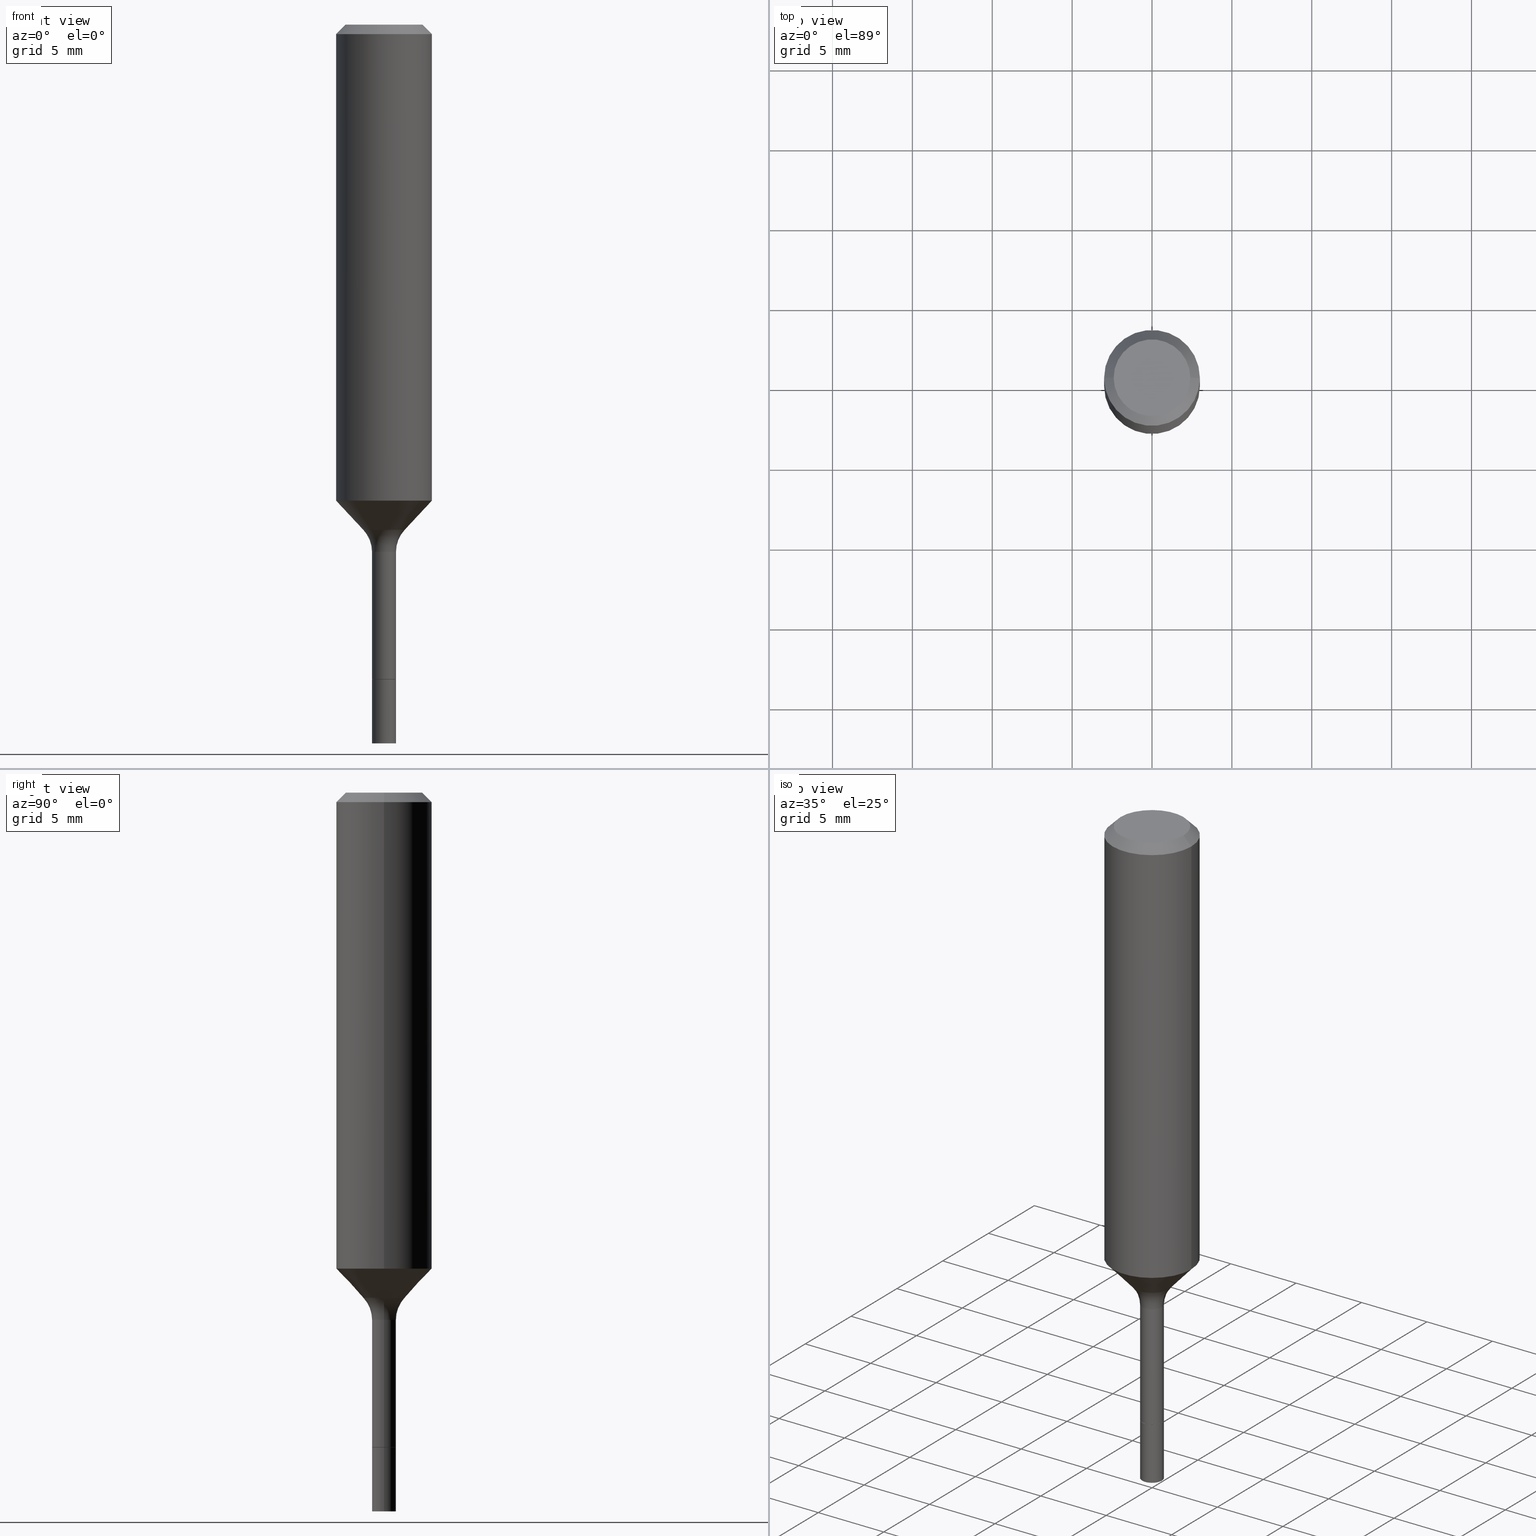
[diagram: canonical four-view strip — front | top / right | iso, engineering-drawing reading convention]
A machine part, canonical four-view strip (front | top / right | iso — engineering-drawing reading convention). The complete STEP part file that produces these views, byte-faithful:
ISO-10303-21;
HEADER;
FILE_DESCRIPTION (( 'STEP AP203' ),
    '1' );
FILE_NAME ('67060.STEP',
    '2025-04-01T15:27:09',
    ( '' ),
    ( '' ),
    'SwSTEP 2.0',
    'SolidWorks 2024',
    '' );
FILE_SCHEMA (( 'CONFIG_CONTROL_DESIGN' ));
ENDSEC;

DATA;
#1 = VERTEX_POINT ( 'NONE', #514 ) ;
#2 = DATE_AND_TIME ( #4, #430 ) ;
#3 = ORIENTED_EDGE ( 'NONE', *, *, #465, .F. ) ;
#4 = CALENDAR_DATE ( 2025, 1, 4 ) ;
#5 = AXIS2_PLACEMENT_3D ( 'NONE', #232, #201, #31 ) ;
#6 = VECTOR ( 'NONE', #280, 39.37007874015748143 ) ;
#7 = CARTESIAN_POINT ( 'NONE',  ( -0.02904999999999999596, -5.425141544578765783E-15, -1.613699999999999690 ) ) ;
#8 =( LENGTH_UNIT ( ) NAMED_UNIT ( * ) SI_UNIT ( $, .METRE. ) );
#9 = FACE_OUTER_BOUND ( 'NONE', #294, .T. ) ;
#10 = CONICAL_SURFACE ( 'NONE', #229, 0.1180999999999999966, 0.7853981633974463916 ) ;
#11 = TOROIDAL_SURFACE ( 'NONE', #411, 0.1095499999999999252, 0.07999999999999987677 ) ;
#12 = DIRECTION ( 'NONE',  ( -2.445468806185136597E-29, 3.491481338843145583E-15, 1.000000000000000000 ) ) ;
#13 = PERSON_AND_ORGANIZATION ( #395, #312 ) ;
#14 = EDGE_CURVE ( 'NONE', #421, #333, #393, .T. ) ;
#15 = FACE_OUTER_BOUND ( 'NONE', #493, .T. ) ;
#16 = DIRECTION ( 'NONE',  ( -2.445468806185136877E-29, 3.491481338843145188E-15, 1.000000000000000000 ) ) ;
#17 = EDGE_CURVE ( 'NONE', #94, #160, #429, .T. ) ;
#18 = LINE ( 'NONE', #179, #501 ) ;
#19 = CIRCLE ( 'NONE', #119, 0.09447999999999998066 ) ;
#20 = CYLINDRICAL_SURFACE ( 'NONE', #390, 0.1181000000000000660 ) ;
#21 = ORIENTED_EDGE ( 'NONE', *, *, #459, .T. ) ;
#22 = LOCAL_TIME ( 11, 27, 9.000000000000000000, #86 ) ;
#23 = CARTESIAN_POINT ( 'NONE',  ( 0.000000000000000000, 0.000000000000000000, 0.000000000000000000 ) ) ;
#24 = ADVANCED_FACE ( 'NONE', ( #66 ), #10, .T. ) ;
#25 = ORIENTED_EDGE ( 'NONE', *, *, #357, .T. ) ;
#26 = VECTOR ( 'NONE', #167, 39.37007874015748143 ) ;
#27 = AXIS2_PLACEMENT_3D ( 'NONE', #348, #157, #166 ) ;
#28 = ADVANCED_FACE ( 'NONE', ( #299 ), #110, .F. ) ;
#29 = ORIENTED_EDGE ( 'NONE', *, *, #106, .F. ) ;
#30 = CARTESIAN_POINT ( 'NONE',  ( 5.776197320209326656E-31, -8.246878922347558061E-17, -0.02362000000000013741 ) ) ;
#31 = DIRECTION ( 'NONE',  ( 1.000000000000000000, -6.982962677686278543E-15, 0.000000000000000000 ) ) ;
#32 = DIRECTION ( 'NONE',  ( -2.445468806185136597E-29, 3.491481338843145583E-15, 1.000000000000000000 ) ) ;
#33 = EDGE_CURVE ( 'NONE', #189, #188, #328, .T. ) ;
#34 = ORIENTED_EDGE ( 'NONE', *, *, #197, .F. ) ;
#35 = CIRCLE ( 'NONE', #322, 0.1181000000000001354 ) ;
#36 = EDGE_LOOP ( 'NONE', ( #95, #184, #336, #352 ) ) ;
#37 = ADVANCED_FACE ( 'NONE', ( #269 ), #435, .T. ) ;
#38 = APPROVAL_ROLE ( '' ) ;
#39 = CARTESIAN_POINT ( 'NONE',  ( -0.1181000000000000660, 8.391509709326787887E-16, -5.809262341591047287E-30 ) ) ;
#40 = VERTEX_POINT ( 'NONE', #355 ) ;
#41 = CLOSED_SHELL ( 'NONE', ( #129, #238, #37, #28 ) ) ;
#42 = AXIS2_PLACEMENT_3D ( 'NONE', #123, #327, #204 ) ;
#43 = LINE ( 'NONE', #89, #26 ) ;
#44 = PRODUCT_DEFINITION_FORMATION_WITH_SPECIFIED_SOURCE ( 'ANY', '', #502, .NOT_KNOWN. ) ;
#45 = DATE_AND_TIME ( #456, #22 ) ;
#46 = DIRECTION ( 'NONE',  ( -0.7071067811864992780, 7.493145998870180611E-15, 0.7071067811865957564 ) ) ;
#47 = ADVANCED_FACE ( 'NONE', ( #517 ), #389, .T. ) ;
#48 = COORDINATED_UNIVERSAL_TIME_OFFSET ( 5, 0, .BEHIND. ) ;
#49 = VECTOR ( 'NONE', #343, 39.37007874015748143 ) ;
#50 = FACE_OUTER_BOUND ( 'NONE', #256, .T. ) ;
#51 = ADVANCED_FACE ( 'NONE', ( #475 ), #239, .F. ) ;
#52 = ORIENTED_EDGE ( 'NONE', *, *, #488, .F. ) ;
#53 = DIRECTION ( 'NONE',  ( 1.000000000000000000, -6.982962677686267499E-15, 4.876176775795936353E-29 ) ) ;
#54 = DIRECTION ( 'NONE',  ( -2.445468806185136597E-29, 3.491481338843145583E-15, 1.000000000000000000 ) ) ;
#55 = VERTEX_POINT ( 'NONE', #309 ) ;
#56 = AXIS2_PLACEMENT_3D ( 'NONE', #287, #500, #247 ) ;
#57 = CIRCLE ( 'NONE', #295, 0.02954999999999992355 ) ;
#58 = ORIENTED_EDGE ( 'NONE', *, *, #255, .F. ) ;
#59 = ORIENTED_EDGE ( 'NONE', *, *, #465, .T. ) ;
#60 = MANIFOLD_SOLID_BREP ( 'Body-Move/Copy2[2]', #457 ) ;
#61 = ORIENTED_EDGE ( 'NONE', *, *, #14, .F. ) ;
#62 = CARTESIAN_POINT ( 'NONE',  ( 5.776197320209326656E-31, -8.246878922347558061E-17, -0.02362000000000013741 ) ) ;
#63 =( GEOMETRIC_REPRESENTATION_CONTEXT ( 3 ) GLOBAL_UNCERTAINTY_ASSIGNED_CONTEXT ( ( #145 ) ) GLOBAL_UNIT_ASSIGNED_CONTEXT ( ( #74, #194, #236 ) ) REPRESENTATION_CONTEXT ( 'NONE', 'WORKASPACE' ) );
#64 = MANIFOLD_SOLID_BREP ( 'Body-Move/Copy2[1]', #41 ) ;
#65 = VERTEX_POINT ( 'NONE', #75 ) ;
#66 = FACE_OUTER_BOUND ( 'NONE', #366, .T. ) ;
#67 = EDGE_CURVE ( 'NONE', #290, #467, #43, .T. ) ;
#68 = CARTESIAN_POINT ( 'NONE',  ( 3.946253012540954589E-29, -5.634203436491183865E-15, -1.613699999999999690 ) ) ;
#69 = CARTESIAN_POINT ( 'NONE',  ( 3.946253012540954589E-29, -5.634203436491183865E-15, -1.613699999999999690 ) ) ;
#70 = EDGE_CURVE ( 'NONE', #188, #189, #398, .T. ) ;
#71 = ORIENTED_EDGE ( 'NONE', *, *, #488, .T. ) ;
#72 = AXIS2_PLACEMENT_3D ( 'NONE', #484, #12, #137 ) ;
#73 = AXIS2_PLACEMENT_3D ( 'NONE', #97, #374, #210 ) ;
#74 =( CONVERSION_BASED_UNIT ( 'INCH', #242 ) LENGTH_UNIT ( ) NAMED_UNIT ( #474 ) );
#75 = CARTESIAN_POINT ( 'NONE',  ( -0.02954999999999996171, -5.700065083842683116E-15, -1.613699999999999690 ) ) ;
#76 = VERTEX_POINT ( 'NONE', #85 ) ;
#77 = CARTESIAN_POINT ( 'NONE',  ( 0.02954999999999973967, -2.063465471256273918E-16, 1.440910237247686459E-30 ) ) ;
#78 = APPROVAL ( #83, 'UNSPECIFIED' ) ;
#79 = DIRECTION ( 'NONE',  ( 1.000000000000000000, -6.982962677686269077E-15, 0.000000000000000000 ) ) ;
#80 = DIRECTION ( 'NONE',  ( -2.445468806185136597E-29, 3.491481338843145583E-15, 1.000000000000000000 ) ) ;
#81 = AXIS2_PLACEMENT_3D ( 'NONE', #82, #138, #53 ) ;
#82 = CARTESIAN_POINT ( 'NONE',  ( 0.000000000000000000, 0.000000000000000000, 0.000000000000000000 ) ) ;
#83 = APPROVAL_STATUS ( 'not_yet_approved' ) ;
#84 = DIRECTION ( 'NONE',  ( -2.445468806185136597E-29, 3.491481338843145583E-15, 1.000000000000000000 ) ) ;
#85 = CARTESIAN_POINT ( 'NONE',  ( 0.02954999999999996171, -6.392204035154029903E-15, -1.771700000000000053 ) ) ;
#86 = COORDINATED_UNIVERSAL_TIME_OFFSET ( 5, 0, .BEHIND. ) ;
#87 = EDGE_LOOP ( 'NONE', ( #428, #152 ) ) ;
#88 = EDGE_CURVE ( 'NONE', #65, #504, #479, .T. ) ;
#89 = CARTESIAN_POINT ( 'NONE',  ( 0.1180999999999999966, -8.926936027602933910E-16, -0.02362000000000013741 ) ) ;
#90 = AXIS2_PLACEMENT_3D ( 'NONE', #68, #349, #313 ) ;
#91 = DIRECTION ( 'NONE',  ( -1.000000000000000000, 6.982962677686265922E-15, -4.876176775795935793E-29 ) ) ;
#92 = AXIS2_PLACEMENT_3D ( 'NONE', #368, #54, #130 ) ;
#93 = DIRECTION ( 'NONE',  ( -2.445468806185136597E-29, 3.491481338843145583E-15, 1.000000000000000000 ) ) ;
#94 = VERTEX_POINT ( 'NONE', #7 ) ;
#95 = ORIENTED_EDGE ( 'NONE', *, *, #505, .T. ) ;
#96 = CC_DESIGN_DATE_AND_TIME_ASSIGNMENT ( #403, #325, ( #495 ) ) ;
#97 = CARTESIAN_POINT ( 'NONE',  ( 3.044951350166641227E-29, -4.347383532312049754E-15, -1.245140131195000333 ) ) ;
#98 = FACE_OUTER_BOUND ( 'NONE', #259, .T. ) ;
#99 = EDGE_LOOP ( 'NONE', ( #181, #102, #436, #441 ) ) ;
#100 = FACE_OUTER_BOUND ( 'NONE', #261, .T. ) ;
#101 = VECTOR ( 'NONE', #245, 39.37007874015748143 ) ;
#102 = ORIENTED_EDGE ( 'NONE', *, *, #450, .F. ) ;
#103 = ADVANCED_FACE ( 'NONE', ( #496 ), #240, .T. ) ;
#104 = ORIENTED_EDGE ( 'NONE', *, *, #308, .T. ) ;
#105 = CARTESIAN_POINT ( 'NONE',  ( 2.869094708468846094E-29, -4.096306854806887117E-15, -1.173228912678119018 ) ) ;
#106 = EDGE_CURVE ( 'NONE', #218, #421, #131, .T. ) ;
#107 = EDGE_LOOP ( 'NONE', ( #296, #508, #3, #223 ) ) ;
#108 = DIRECTION ( 'NONE',  ( -2.445468806185136597E-29, 3.491481338843145583E-15, 1.000000000000000000 ) ) ;
#109 = AXIS2_PLACEMENT_3D ( 'NONE', #437, #80, #444 ) ;
#110 = PLANE ( 'NONE',  #409 ) ;
#111 = FACE_OUTER_BOUND ( 'NONE', #99, .T. ) ;
#112 = CC_DESIGN_APPROVAL ( #78, ( #44 ) ) ;
#113 = DIRECTION ( 'NONE',  ( 1.000000000000000000, -6.982962677686269077E-15, 0.000000000000000000 ) ) ;
#114 = PERSON_AND_ORGANIZATION ( #395, #312 ) ;
#115 = EDGE_CURVE ( 'NONE', #218, #234, #301, .T. ) ;
#116 = ORIENTED_EDGE ( 'NONE', *, *, #505, .F. ) ;
#117 = APPROVAL_STATUS ( 'not_yet_approved' ) ;
#118 = DIRECTION ( 'NONE',  ( -2.445468806185136597E-29, 3.491481338843145583E-15, 1.000000000000000000 ) ) ;
#119 = AXIS2_PLACEMENT_3D ( 'NONE', #124, #203, #442 ) ;
#120 = DIRECTION ( 'NONE',  ( 1.000000000000000000, -6.982962677686267499E-15, 4.875432709231658792E-29 ) ) ;
#121 = ORIENTED_EDGE ( 'NONE', *, *, #70, .F. ) ;
#122 = APPLICATION_PROTOCOL_DEFINITION ( 'international standard', 'config_control_design', 1994, #260 ) ;
#123 = CARTESIAN_POINT ( 'NONE',  ( 3.946253012540954589E-29, -5.634203436491183865E-15, -1.613699999999999690 ) ) ;
#124 = CARTESIAN_POINT ( 'NONE',  ( 7.545787641473140628E-46, -1.077338491108201769E-31, -3.085620075131671975E-17 ) ) ;
#125 = DESIGN_CONTEXT ( 'detailed design', #260, 'design' ) ;
#126 = CARTESIAN_POINT ( 'NONE',  ( 3.772893820736570314E-46, -5.386692455541008845E-32, -1.542810037565835988E-17 ) ) ;
#127 = DATE_AND_TIME ( #208, #243 ) ;
#128 = CIRCLE ( 'NONE', #419, 0.02954999999999996171 ) ;
#129 = ADVANCED_FACE ( 'NONE', ( #402 ), #455, .T. ) ;
#130 = DIRECTION ( 'NONE',  ( 1.000000000000000000, -6.982962677686271444E-15, 0.000000000000000000 ) ) ;
#131 = LINE ( 'NONE', #406, #277 ) ;
#132 = APPROVAL_STATUS ( 'not_yet_approved' ) ;
#133 = LOCAL_TIME ( 11, 27, 9.000000000000000000, #285 ) ;
#134 = ORIENTED_EDGE ( 'NONE', *, *, #326, .T. ) ;
#135 = CARTESIAN_POINT ( 'NONE',  ( 3.178375807398822119E-29, -4.537878296094436237E-15, -1.299700000000000077 ) ) ;
#136 = CC_DESIGN_PERSON_AND_ORGANIZATION_ASSIGNMENT ( #164, #310, ( #509 ) ) ;
#137 = DIRECTION ( 'NONE',  ( 1.000000000000000000, -6.982962677686271444E-15, 0.000000000000000000 ) ) ;
#138 = DIRECTION ( 'NONE',  ( -2.445468806185136597E-29, 3.491481338843145583E-15, 1.000000000000000000 ) ) ;
#139 = APPROVAL_PERSON_ORGANIZATION ( #227, #262, #38 ) ;
#140 = PRODUCT_RELATED_PRODUCT_CATEGORY ( 'detail', '', ( #502 ) ) ;
#141 = ORIENTED_EDGE ( 'NONE', *, *, #481, .F. ) ;
#142 = DIRECTION ( 'NONE',  ( 1.000000000000000000, -6.982962677686266711E-15, 4.876176775795936353E-29 ) ) ;
#143 = ORIENTED_EDGE ( 'NONE', *, *, #401, .T. ) ;
#144 = FACE_OUTER_BOUND ( 'NONE', #344, .T. ) ;
#145 = UNCERTAINTY_MEASURE_WITH_UNIT (LENGTH_MEASURE( 1.000000000000000082E-05 ), #74, 'distance_accuracy_value', 'NONE');
#146 = ORIENTED_EDGE ( 'NONE', *, *, #14, .T. ) ;
#147 = CARTESIAN_POINT ( 'NONE',  ( 0.02954999999999992355, -4.744224843220065059E-15, -1.299700000000000077 ) ) ;
#148 = EDGE_CURVE ( 'NONE', #504, #65, #128, .T. ) ;
#149 = AXIS2_PLACEMENT_3D ( 'NONE', #422, #272, #485 ) ;
#150 = ORIENTED_EDGE ( 'NONE', *, *, #17, .F. ) ;
#151 = ADVANCED_FACE ( 'NONE', ( #50 ), #170, .T. ) ;
#152 = ORIENTED_EDGE ( 'NONE', *, *, #88, .T. ) ;
#153 = CARTESIAN_POINT ( 'NONE',  ( 5.776197320209326656E-31, -8.246878922347558061E-17, -0.02362000000000013741 ) ) ;
#154 = DIRECTION ( 'NONE',  ( -2.445468806185136597E-29, 3.491481338843145583E-15, 1.000000000000000000 ) ) ;
#155 = CIRCLE ( 'NONE', #202, 0.07999999999999990452 ) ;
#156 = DIRECTION ( 'NONE',  ( -1.000000000000000000, 6.982962677686266711E-15, 0.000000000000000000 ) ) ;
#157 = DIRECTION ( 'NONE',  ( 0.000000000000000000, 0.000000000000000000, 1.000000000000000000 ) ) ;
#158 = APPROVAL_PERSON_ORGANIZATION ( #497, #381, #452 ) ;
#159 = ORIENTED_EDGE ( 'NONE', *, *, #190, .F. ) ;
#160 = VERTEX_POINT ( 'NONE', #248 ) ;
#161 = APPROVAL_DATE_TIME ( #2, #262 ) ;
#162 = CARTESIAN_POINT ( 'NONE',  ( 3.946253012540954589E-29, -5.634203436491183865E-15, -1.613699999999999690 ) ) ;
#163 = AXIS2_PLACEMENT_3D ( 'NONE', #471, #267, #432 ) ;
#164 = PERSON_AND_ORGANIZATION ( #395, #312 ) ;
#165 = DIRECTION ( 'NONE',  ( 7.105427357601001859E-15, 1.000000000000000000, -3.491481338843145583E-15 ) ) ;
#166 = DIRECTION ( 'NONE',  ( 1.000000000000000000, 0.000000000000000000, 0.000000000000000000 ) ) ;
#167 = DIRECTION ( 'NONE',  ( 0.7071067811865461294, -7.319954787623251312E-15, -0.7071067811865489050 ) ) ;
#168 = ADVANCED_FACE ( 'NONE', ( #15 ), #463, .T. ) ;
#169 = PERSON_AND_ORGANIZATION_ROLE ( 'creator' ) ;
#170 = CONICAL_SURFACE ( 'NONE', #489, 0.05104170387046635948, 0.7504915783575628607 ) ;
#171 = ADVANCED_FACE ( 'NONE', ( #9 ), #486, .F. ) ;
#172 = ORIENTED_EDGE ( 'NONE', *, *, #255, .T. ) ;
#173 = VECTOR ( 'NONE', #16, 39.37007874015748143 ) ;
#174 = DIRECTION ( 'NONE',  ( 1.000000000000000000, -6.982962677686266711E-15, 4.883557194083113462E-29 ) ) ;
#175 = PERSON_AND_ORGANIZATION ( #395, #312 ) ;
#176 = DIRECTION ( 'NONE',  ( -2.445468806185136597E-29, 3.491481338843145583E-15, 1.000000000000000000 ) ) ;
#177 = ADVANCED_FACE ( 'NONE', ( #361 ), #20, .T. ) ;
#178 = AXIS2_PLACEMENT_3D ( 'NONE', #451, #443, #79 ) ;
#179 = CARTESIAN_POINT ( 'NONE',  ( -0.02904999999999999596, -5.427790771752873829E-15, -1.613699999999999690 ) ) ;
#180 = AXIS2_PLACEMENT_3D ( 'NONE', #105, #108, #346 ) ;
#181 = ORIENTED_EDGE ( 'NONE', *, *, #67, .F. ) ;
#182 = FACE_OUTER_BOUND ( 'NONE', #482, .T. ) ;
#183 = DIRECTION ( 'NONE',  ( -2.445468806185136597E-29, 3.491481338843145583E-15, 1.000000000000000000 ) ) ;
#184 = ORIENTED_EDGE ( 'NONE', *, *, #283, .T. ) ;
#185 = DIRECTION ( 'NONE',  ( -2.445468806185136597E-29, 3.491481338843145583E-15, 1.000000000000000000 ) ) ;
#186 = ORIENTED_EDGE ( 'NONE', *, *, #67, .T. ) ;
#187 = ADVANCED_FACE ( 'NONE', ( #98 ), #215, .T. ) ;
#188 = VERTEX_POINT ( 'NONE', #507 ) ;
#189 = VERTEX_POINT ( 'NONE', #198 ) ;
#190 = EDGE_CURVE ( 'NONE', #188, #234, #354, .T. ) ;
#191 = ORIENTED_EDGE ( 'NONE', *, *, #70, .T. ) ;
#192 = CIRCLE ( 'NONE', #341, 0.1180999999999999966 ) ;
#193 = DIRECTION ( 'NONE',  ( -2.445468806185136597E-29, 3.491481338843145583E-15, 1.000000000000000000 ) ) ;
#194 =( NAMED_UNIT ( * ) PLANE_ANGLE_UNIT ( ) SI_UNIT ( $, .RADIAN. ) );
#195 = LINE ( 'NONE', #386, #49 ) ;
#196 = DIRECTION ( 'NONE',  ( -1.000000000000000000, 6.982962677686265922E-15, -4.876176775795935793E-29 ) ) ;
#197 = EDGE_CURVE ( 'NONE', #396, #375, #155, .T. ) ;
#198 = CARTESIAN_POINT ( 'NONE',  ( 0.02954999999999955232, -5.838804242947389606E-15, -1.613200000000000189 ) ) ;
#199 = DIRECTION ( 'NONE',  ( 2.438088387897960049E-29, -3.491481338843145188E-15, -1.000000000000000000 ) ) ;
#200 = DIRECTION ( 'NONE',  ( -2.445468806185136597E-29, 3.491481338843145583E-15, 1.000000000000000000 ) ) ;
#201 = DIRECTION ( 'NONE',  ( -2.445468806185136597E-29, 3.491481338843145583E-15, 1.000000000000000000 ) ) ;
#202 = AXIS2_PLACEMENT_3D ( 'NONE', #427, #225, #268 ) ;
#203 = DIRECTION ( 'NONE',  ( -2.445468806185136597E-29, 3.491481338843145583E-15, 1.000000000000000000 ) ) ;
#204 = DIRECTION ( 'NONE',  ( 1.000000000000000000, -6.982962677686278543E-15, 0.000000000000000000 ) ) ;
#205 = EDGE_CURVE ( 'NONE', #55, #421, #446, .T. ) ;
#206 = DIRECTION ( 'NONE',  ( -1.000000000000000000, 6.982962677686265922E-15, -4.876176775795935793E-29 ) ) ;
#207 = LINE ( 'NONE', #449, #101 ) ;
#208 = CALENDAR_DATE ( 2025, 1, 4 ) ;
#209 = CIRCLE ( 'NONE', #480, 0.09447999999999998066 ) ;
#210 = DIRECTION ( 'NONE',  ( 1.000000000000000000, -6.982962677686258822E-15, 0.000000000000000000 ) ) ;
#211 = DIRECTION ( 'NONE',  ( 1.000000000000000000, -6.982962677686258822E-15, 0.000000000000000000 ) ) ;
#212 = ORIENTED_EDGE ( 'NONE', *, *, #292, .F. ) ;
#213 = CARTESIAN_POINT ( 'NONE',  ( 3.178375807398822119E-29, -4.537878296094436237E-15, -1.299700000000000077 ) ) ;
#214 = AXIS2_PLACEMENT_3D ( 'NONE', #408, #367, #416 ) ;
#215 = CYLINDRICAL_SURFACE ( 'NONE', #372, 0.1181000000000000660 ) ;
#216 = ORIENTED_EDGE ( 'NONE', *, *, #357, .F. ) ;
#217 = EDGE_CURVE ( 'NONE', #333, #467, #192, .T. ) ;
#218 = VERTEX_POINT ( 'NONE', #391 ) ;
#219 = ORIENTED_EDGE ( 'NONE', *, *, #88, .F. ) ;
#220 = DIRECTION ( 'NONE',  ( -2.445468806185136597E-29, 3.491481338843145583E-15, 1.000000000000000000 ) ) ;
#221 = ORIENTED_EDGE ( 'NONE', *, *, #326, .F. ) ;
#222 = EDGE_CURVE ( 'NONE', #76, #504, #195, .T. ) ;
#223 = ORIENTED_EDGE ( 'NONE', *, *, #459, .F. ) ;
#224 = CARTESIAN_POINT ( 'NONE',  ( 0.02904999999999999596, -5.837058502277969680E-15, -1.613699999999999690 ) ) ;
#225 = DIRECTION ( 'NONE',  ( -6.982962677686266711E-15, -1.000000000000000000, 3.491481338843145583E-15 ) ) ;
#226 = DIRECTION ( 'NONE',  ( -2.445468806185136877E-29, 3.491481338843145188E-15, 1.000000000000000000 ) ) ;
#227 = PERSON_AND_ORGANIZATION ( #395, #312 ) ;
#228 = DIRECTION ( 'NONE',  ( -2.445468806185136877E-29, 3.491481338843145188E-15, 1.000000000000000000 ) ) ;
#229 = AXIS2_PLACEMENT_3D ( 'NONE', #153, #347, #156 ) ;
#230 = VECTOR ( 'NONE', #228, 39.37007874015748143 ) ;
#231 = ADVANCED_FACE ( 'NONE', ( #265 ), #351, .T. ) ;
#232 = CARTESIAN_POINT ( 'NONE',  ( 3.946253012540954589E-29, -5.634203436491183865E-15, -1.613699999999999690 ) ) ;
#233 = DIRECTION ( 'NONE',  ( 1.000000000000000000, -6.982962677686271444E-15, 0.000000000000000000 ) ) ;
#234 = VERTEX_POINT ( 'NONE', #363 ) ;
#235 = ADVANCED_FACE ( 'NONE', ( #499 ), #11, .F. ) ;
#236 =( NAMED_UNIT ( * ) SI_UNIT ( $, .STERADIAN. ) SOLID_ANGLE_UNIT ( ) );
#237 = ORIENTED_EDGE ( 'NONE', *, *, #481, .T. ) ;
#238 = ADVANCED_FACE ( 'NONE', ( #182 ), #454, .T. ) ;
#239 = TOROIDAL_SURFACE ( 'NONE', #379, 0.1095499999999999252, 0.07999999999999987677 ) ;
#240 = CYLINDRICAL_SURFACE ( 'NONE', #81, 0.02954999999999973967 ) ;
#241 = CIRCLE ( 'NONE', #109, 0.02954999999999992355 ) ;
#242 = LENGTH_MEASURE_WITH_UNIT ( LENGTH_MEASURE( 0.02539999999999999897 ), #8 );
#243 = LOCAL_TIME ( 11, 27, 9.000000000000000000, #48 ) ;
#244 = COORDINATED_UNIVERSAL_TIME_OFFSET ( 5, 0, .BEHIND. ) ;
#245 = DIRECTION ( 'NONE',  ( 0.6819983600624993647, -2.208861293262484086E-15, 0.7313537016191696827 ) ) ;
#246 = APPROVAL_DATE_TIME ( #45, #381 ) ;
#247 = DIRECTION ( 'NONE',  ( 1.000000000000000000, -6.982962677686271444E-15, 0.000000000000000000 ) ) ;
#248 = CARTESIAN_POINT ( 'NONE',  ( 0.02904999999999999596, -5.837058502277969680E-15, -1.613699999999999690 ) ) ;
#249 = CARTESIAN_POINT ( 'NONE',  ( 4.332637083918206427E-29, -6.185857488028401081E-15, -1.771700000000000053 ) ) ;
#250 = ORIENTED_EDGE ( 'NONE', *, *, #286, .T. ) ;
#251 = CARTESIAN_POINT ( 'NONE',  ( -0.02954999999999996171, -5.424238058074074508E-15, -1.613699999999999690 ) ) ;
#252 = ORIENTED_EDGE ( 'NONE', *, *, #315, .F. ) ;
#253 = PLANE ( 'NONE',  #149 ) ;
#254 = CONICAL_SURFACE ( 'NONE', #329, 0.05104170387046635948, 0.7504915783575628607 ) ;
#255 = EDGE_CURVE ( 'NONE', #396, #218, #516, .T. ) ;
#256 = EDGE_LOOP ( 'NONE', ( #29, #143, #104, #52 ) ) ;
#257 = CC_DESIGN_APPROVAL ( #381, ( #495 ) ) ;
#258 = APPLICATION_CONTEXT ( 'configuration controlled 3d designs of mechanical parts and assemblies' ) ;
#259 = EDGE_LOOP ( 'NONE', ( #425, #146, #298, #252 ) ) ;
#260 = APPLICATION_CONTEXT ( 'configuration controlled 3d designs of mechanical parts and assemblies' ) ;
#261 = EDGE_LOOP ( 'NONE', ( #172, #384, #462, #460 ) ) ;
#262 = APPROVAL ( #117, 'UNSPECIFIED' ) ;
#263 = DIRECTION ( 'NONE',  ( 0.7071067811864992780, -2.468850131081751401E-15, 0.7071067811865957564 ) ) ;
#264 = AXIS2_PLACEMENT_3D ( 'NONE', #316, #200, #233 ) ;
#265 = FACE_OUTER_BOUND ( 'NONE', #382, .T. ) ;
#266 = ORIENTED_EDGE ( 'NONE', *, *, #217, .F. ) ;
#267 = DIRECTION ( 'NONE',  ( 2.445468806185136597E-29, -3.491481338843145583E-15, -1.000000000000000000 ) ) ;
#268 = DIRECTION ( 'NONE',  ( 1.000000000000000000, -6.982962677686268288E-15, 0.000000000000000000 ) ) ;
#269 = FACE_OUTER_BOUND ( 'NONE', #373, .T. ) ;
#270 = CARTESIAN_POINT ( 'NONE',  ( 0.1180999999999999966, -9.071566814582237199E-16, -0.02362000000000013741 ) ) ;
#271 = EDGE_LOOP ( 'NONE', ( #61, #71, #498, #266 ) ) ;
#272 = DIRECTION ( 'NONE',  ( -2.438088387897960049E-29, 3.491481338843145188E-15, 1.000000000000000000 ) ) ;
#273 = VECTOR ( 'NONE', #494, 39.37007874015748143 ) ;
#274 = DIRECTION ( 'NONE',  ( -2.445468806185136597E-29, 3.491481338843145583E-15, 1.000000000000000000 ) ) ;
#275 = ORIENTED_EDGE ( 'NONE', *, *, #292, .T. ) ;
#276 = CARTESIAN_POINT ( 'NONE',  ( 3.946253012540954589E-29, -5.634203436491183865E-15, -1.613699999999999690 ) ) ;
#277 = VECTOR ( 'NONE', #400, 39.37007874015748143 ) ;
#278 = CIRCLE ( 'NONE', #92, 0.02954999999999996171 ) ;
#279 = DATE_AND_TIME ( #319, #332 ) ;
#280 = DIRECTION ( 'NONE',  ( -0.7071067811865461294, 2.468850131082242072E-15, -0.7071067811865489050 ) ) ;
#281 = APPROVAL_ROLE ( '' ) ;
#282 = ORIENTED_EDGE ( 'NONE', *, *, #17, .T. ) ;
#283 = EDGE_CURVE ( 'NONE', #40, #65, #413, .T. ) ;
#284 = CARTESIAN_POINT ( 'NONE',  ( -0.1095499999999999252, -3.759478729069247015E-15, -1.299700000000000077 ) ) ;
#285 = COORDINATED_UNIVERSAL_TIME_OFFSET ( 5, 0, .BEHIND. ) ;
#286 = EDGE_CURVE ( 'NONE', #40, #76, #278, .T. ) ;
#287 = CARTESIAN_POINT ( 'NONE',  ( 3.946253012540954589E-29, -5.634203436491183865E-15, -1.613699999999999690 ) ) ;
#288 = AXIS2_PLACEMENT_3D ( 'NONE', #69, #392, #478 ) ;
#289 = DIRECTION ( 'NONE',  ( 2.438088387897960049E-29, -3.491481338843145188E-15, -1.000000000000000000 ) ) ;
#290 = VERTEX_POINT ( 'NONE', #369 ) ;
#291 = ORIENTED_EDGE ( 'NONE', *, *, #33, .F. ) ;
#292 = EDGE_CURVE ( 'NONE', #94, #188, #18, .T. ) ;
#293 = DIRECTION ( 'NONE',  ( -2.445468806185136597E-29, 3.491481338843145583E-15, 1.000000000000000000 ) ) ;
#294 = EDGE_LOOP ( 'NONE', ( #376, #237 ) ) ;
#295 = AXIS2_PLACEMENT_3D ( 'NONE', #135, #293, #426 ) ;
#296 = ORIENTED_EDGE ( 'NONE', *, *, #33, .T. ) ;
#297 = ADVANCED_BREP_SHAPE_REPRESENTATION ( '67060', ( #64, #60, #27 ), #63 ) ;
#298 = ORIENTED_EDGE ( 'NONE', *, *, #377, .F. ) ;
#299 = FACE_OUTER_BOUND ( 'NONE', #87, .T. ) ;
#300 = DIRECTION ( 'NONE',  ( 1.000000000000000000, -6.982962677686258822E-15, 0.000000000000000000 ) ) ;
#301 = CIRCLE ( 'NONE', #445, 0.07999999999999990452 ) ;
#302 = CONICAL_SURFACE ( 'NONE', #163, 0.1180999999999999966, 0.7853981633974463916 ) ;
#303 = CARTESIAN_POINT ( 'NONE',  ( 3.945030278137862348E-29, -5.632457695821763151E-15, -1.613200000000000189 ) ) ;
#304 = EDGE_CURVE ( 'NONE', #1, #333, #330, .T. ) ;
#305 = CC_DESIGN_SECURITY_CLASSIFICATION ( #495, ( #44 ) ) ;
#306 = DIRECTION ( 'NONE',  ( 1.000000000000000000, -6.982962677686278543E-15, 0.000000000000000000 ) ) ;
#307 = DIRECTION ( 'NONE',  ( 1.000000000000000000, -6.982962677686269077E-15, 0.000000000000000000 ) ) ;
#308 = EDGE_CURVE ( 'NONE', #396, #55, #207, .T. ) ;
#309 = CARTESIAN_POINT ( 'NONE',  ( 0.1181000000000001354, -4.920994747041635380E-15, -1.173228912678119018 ) ) ;
#310 = PERSON_AND_ORGANIZATION_ROLE ( 'creator' ) ;
#311 = AXIS2_PLACEMENT_3D ( 'NONE', #303, #193, #113 ) ;
#312 = ORGANIZATION ( 'UNSPECIFIED', 'UNSPECIFIED', '' ) ;
#313 = DIRECTION ( 'NONE',  ( 1.000000000000000000, -6.982962677686271444E-15, 0.000000000000000000 ) ) ;
#314 = CARTESIAN_POINT ( 'NONE',  ( 0.02954999999999996171, -5.840549983616812687E-15, -1.613699999999999690 ) ) ;
#315 = EDGE_CURVE ( 'NONE', #55, #467, #404, .T. ) ;
#316 = CARTESIAN_POINT ( 'NONE',  ( 4.332637083918206427E-29, -6.185857488028401081E-15, -1.771700000000000053 ) ) ;
#317 = PRODUCT_DEFINITION_SHAPE ( 'NONE', 'NONE',  #509 ) ;
#318 = CARTESIAN_POINT ( 'NONE',  ( 3.044951350166641227E-29, -4.347383532312049754E-15, -1.245140131195000333 ) ) ;
#319 = CALENDAR_DATE ( 2025, 1, 4 ) ;
#320 = CARTESIAN_POINT ( 'NONE',  ( -0.02954999999999973967, 2.099653784171077552E-16, -1.453545319170311939E-30 ) ) ;
#321 = AXIS2_PLACEMENT_3D ( 'NONE', #126, #447, #206 ) ;
#322 = AXIS2_PLACEMENT_3D ( 'NONE', #476, #440, #307 ) ;
#323 = PERSON_AND_ORGANIZATION ( #395, #312 ) ;
#324 = CARTESIAN_POINT ( 'NONE',  ( 0.1181000000000000660, -8.246878922347485584E-16, 5.758764772215003944E-30 ) ) ;
#325 = DATE_TIME_ROLE ( 'classification_date' ) ;
#326 = EDGE_CURVE ( 'NONE', #234, #375, #57, .T. ) ;
#327 = DIRECTION ( 'NONE',  ( -2.445468806185136597E-29, 3.491481338843145583E-15, 1.000000000000000000 ) ) ;
#328 = CIRCLE ( 'NONE', #311, 0.02954999999999955232 ) ;
#329 = AXIS2_PLACEMENT_3D ( 'NONE', #385, #32, #334 ) ;
#330 = LINE ( 'NONE', #418, #6 ) ;
#331 = CC_DESIGN_PERSON_AND_ORGANIZATION_ASSIGNMENT ( #175, #169, ( #44 ) ) ;
#332 = LOCAL_TIME ( 11, 27, 9.000000000000000000, #244 ) ;
#333 = VERTEX_POINT ( 'NONE', #340 ) ;
#334 = DIRECTION ( 'NONE',  ( 1.000000000000000000, -6.982962677686258822E-15, 0.000000000000000000 ) ) ;
#335 = DIRECTION ( 'NONE',  ( 1.000000000000000000, -6.982962677686266711E-15, 4.876176775795936353E-29 ) ) ;
#336 = ORIENTED_EDGE ( 'NONE', *, *, #148, .F. ) ;
#337 = DIRECTION ( 'NONE',  ( 1.000000000000000000, -6.982962677686266711E-15, 0.000000000000000000 ) ) ;
#338 = ORIENTED_EDGE ( 'NONE', *, *, #115, .T. ) ;
#339 = VECTOR ( 'NONE', #226, 39.37007874015748143 ) ;
#340 = CARTESIAN_POINT ( 'NONE',  ( -0.1180999999999999966, -1.250236851082501907E-15, -0.02362000000000013741 ) ) ;
#341 = AXIS2_PLACEMENT_3D ( 'NONE', #62, #220, #434 ) ;
#342 = ORIENTED_EDGE ( 'NONE', *, *, #433, .F. ) ;
#343 = DIRECTION ( 'NONE',  ( -2.445468806185136877E-29, 3.491481338843145188E-15, 1.000000000000000000 ) ) ;
#344 = EDGE_LOOP ( 'NONE', ( #342, #150 ) ) ;
#345 = CARTESIAN_POINT ( 'NONE',  ( 0.05104170387046639418, -4.703805845445030521E-15, -1.245140131195000333 ) ) ;
#346 = DIRECTION ( 'NONE',  ( 1.000000000000000000, -6.982962677686269077E-15, 0.000000000000000000 ) ) ;
#347 = DIRECTION ( 'NONE',  ( 2.445468806185136597E-29, -3.491481338843145583E-15, -1.000000000000000000 ) ) ;
#348 = CARTESIAN_POINT ( 'NONE',  ( 0.000000000000000000, 0.000000000000000000, 0.000000000000000000 ) ) ;
#349 = DIRECTION ( 'NONE',  ( -2.445468806185136597E-29, 3.491481338843145583E-15, 1.000000000000000000 ) ) ;
#350 = CC_DESIGN_PERSON_AND_ORGANIZATION_ASSIGNMENT ( #114, #483, ( #502 ) ) ;
#351 = CYLINDRICAL_SURFACE ( 'NONE', #214, 0.02954999999999973967 ) ;
#352 = ORIENTED_EDGE ( 'NONE', *, *, #222, .F. ) ;
#353 = COORDINATED_UNIVERSAL_TIME_OFFSET ( 5, 0, .BEHIND. ) ;
#354 = LINE ( 'NONE', #320, #230 ) ;
#355 = CARTESIAN_POINT ( 'NONE',  ( -0.02954999999999996171, -5.700065083842683116E-15, -1.771700000000000053 ) ) ;
#356 = DIRECTION ( 'NONE',  ( -2.445468806185136597E-29, 3.491481338843145583E-15, 1.000000000000000000 ) ) ;
#357 = EDGE_CURVE ( 'NONE', #160, #189, #383, .T. ) ;
#358 = AXIS2_PLACEMENT_3D ( 'NONE', #510, #154, #300 ) ;
#359 = APPLICATION_PROTOCOL_DEFINITION ( 'international standard', 'config_control_design', 1994, #258 ) ;
#360 = SHAPE_DEFINITION_REPRESENTATION ( #317, #297 ) ;
#361 = FACE_OUTER_BOUND ( 'NONE', #271, .T. ) ;
#362 = SECURITY_CLASSIFICATION_LEVEL ( 'unclassified' ) ;
#363 = CARTESIAN_POINT ( 'NONE',  ( -0.02954999999999992355, -4.875202617540993886E-15, -1.299700000000000077 ) ) ;
#364 = APPROVAL_DATE_TIME ( #279, #78 ) ;
#365 = CC_DESIGN_DATE_AND_TIME_ASSIGNMENT ( #127, #407, ( #509 ) ) ;
#366 = EDGE_LOOP ( 'NONE', ( #141, #186, #387, #423 ) ) ;
#367 = DIRECTION ( 'NONE',  ( -2.445468806185136597E-29, 3.491481338843145583E-15, 1.000000000000000000 ) ) ;
#368 = CARTESIAN_POINT ( 'NONE',  ( 4.332637083918206427E-29, -6.185857488028401081E-15, -1.771700000000000053 ) ) ;
#369 = CARTESIAN_POINT ( 'NONE',  ( 0.09447999999999998066, -7.704367267948738690E-16, -3.085620075131172158E-17 ) ) ;
#370 = CC_DESIGN_PERSON_AND_ORGANIZATION_ASSIGNMENT ( #487, #448, ( #495 ) ) ;
#371 = AXIS2_PLACEMENT_3D ( 'NONE', #162, #118, #306 ) ;
#372 = AXIS2_PLACEMENT_3D ( 'NONE', #23, #183, #335 ) ;
#373 = EDGE_LOOP ( 'NONE', ( #378, #250, #515, #219 ) ) ;
#374 = DIRECTION ( 'NONE',  ( -2.445468806185136597E-29, 3.491481338843145583E-15, 1.000000000000000000 ) ) ;
#375 = VERTEX_POINT ( 'NONE', #147 ) ;
#376 = ORIENTED_EDGE ( 'NONE', *, *, #450, .T. ) ;
#377 = EDGE_CURVE ( 'NONE', #467, #333, #470, .T. ) ;
#378 = ORIENTED_EDGE ( 'NONE', *, *, #283, .F. ) ;
#379 = AXIS2_PLACEMENT_3D ( 'NONE', #477, #274, #439 ) ;
#380 = CIRCLE ( 'NONE', #358, 0.05104170387046635948 ) ;
#381 = APPROVAL ( #132, 'UNSPECIFIED' ) ;
#382 = EDGE_LOOP ( 'NONE', ( #159, #191, #21, #221 ) ) ;
#383 = LINE ( 'NONE', #224, #420 ) ;
#384 = ORIENTED_EDGE ( 'NONE', *, *, #106, .T. ) ;
#385 = CARTESIAN_POINT ( 'NONE',  ( 3.044951350166641227E-29, -4.347383532312049754E-15, -1.245140131195000333 ) ) ;
#386 = CARTESIAN_POINT ( 'NONE',  ( 0.02954999999999996171, -5.840549983616812687E-15, -1.613699999999999690 ) ) ;
#387 = ORIENTED_EDGE ( 'NONE', *, *, #377, .T. ) ;
#388 = LINE ( 'NONE', #77, #458 ) ;
#389 = CONICAL_SURFACE ( 'NONE', #371, 0.02904999999999999596, 0.7853981633973801113 ) ;
#390 = AXIS2_PLACEMENT_3D ( 'NONE', #461, #503, #142 ) ;
#391 = CARTESIAN_POINT ( 'NONE',  ( -0.05104170387046639418, -3.984710413252268352E-15, -1.245140131195000333 ) ) ;
#392 = DIRECTION ( 'NONE',  ( -2.445468806185136597E-29, 3.491481338843145583E-15, 1.000000000000000000 ) ) ;
#393 = LINE ( 'NONE', #39, #339 ) ;
#394 = MECHANICAL_CONTEXT ( 'NONE', #258, 'mechanical' ) ;
#395 = PERSON ( 'UNSPECIFIED', 'UNSPECIFIED', 'UNSPECIFIED', ('UNSPECIFIED'), ('UNSPECIFIED'), ('UNSPECIFIED') ) ;
#396 = VERTEX_POINT ( 'NONE', #345 ) ;
#397 = CARTESIAN_POINT ( 'NONE',  ( 7.545787641473140628E-46, -1.077338491108201769E-31, -3.085620075131671975E-17 ) ) ;
#398 = CIRCLE ( 'NONE', #178, 0.02954999999999955232 ) ;
#399 = CC_DESIGN_APPROVAL ( #262, ( #509 ) ) ;
#400 = DIRECTION ( 'NONE',  ( -0.6819983600624993647, 7.399397606724291309E-15, 0.7313537016191696827 ) ) ;
#401 = EDGE_CURVE ( 'NONE', #218, #396, #380, .T. ) ;
#402 = FACE_OUTER_BOUND ( 'NONE', #36, .T. ) ;
#403 = DATE_AND_TIME ( #412, #133 ) ;
#404 = LINE ( 'NONE', #324, #273 ) ;
#405 = ADVANCED_FACE ( 'NONE', ( #111 ), #302, .T. ) ;
#406 = CARTESIAN_POINT ( 'NONE',  ( -0.05104170387046635948, -3.984710413252269140E-15, -1.245140131195000333 ) ) ;
#407 = DATE_TIME_ROLE ( 'creation_date' ) ;
#408 = CARTESIAN_POINT ( 'NONE',  ( 0.000000000000000000, 0.000000000000000000, 0.000000000000000000 ) ) ;
#409 = AXIS2_PLACEMENT_3D ( 'NONE', #472, #199, #196 ) ;
#410 = DIRECTION ( 'NONE',  ( 1.000000000000000000, -6.982962677686271444E-15, 0.000000000000000000 ) ) ;
#411 = AXIS2_PLACEMENT_3D ( 'NONE', #213, #84, #174 ) ;
#412 = CALENDAR_DATE ( 2025, 1, 4 ) ;
#413 = LINE ( 'NONE', #251, #173 ) ;
#414 = EDGE_LOOP ( 'NONE', ( #513, #275, #291, #216 ) ) ;
#415 = ADVANCED_FACE ( 'NONE', ( #100 ), #254, .T. ) ;
#416 = DIRECTION ( 'NONE',  ( 1.000000000000000000, -6.982962677686267499E-15, 4.876176775795936353E-29 ) ) ;
#417 = ORIENTED_EDGE ( 'NONE', *, *, #286, .F. ) ;
#418 = CARTESIAN_POINT ( 'NONE',  ( -0.1180999999999999966, 7.422191030112725094E-16, -0.02362000000000013741 ) ) ;
#419 = AXIS2_PLACEMENT_3D ( 'NONE', #276, #93, #410 ) ;
#420 = VECTOR ( 'NONE', #263, 39.37007874015748143 ) ;
#421 = VERTEX_POINT ( 'NONE', #506 ) ;
#422 = CARTESIAN_POINT ( 'NONE',  ( 3.946253012540954589E-29, -5.634203436491183865E-15, -1.613699999999999690 ) ) ;
#423 = ORIENTED_EDGE ( 'NONE', *, *, #304, .F. ) ;
#424 = ADVANCED_FACE ( 'NONE', ( #144 ), #253, .F. ) ;
#425 = ORIENTED_EDGE ( 'NONE', *, *, #205, .T. ) ;
#426 = DIRECTION ( 'NONE',  ( 1.000000000000000000, -6.982962677686280121E-15, 0.000000000000000000 ) ) ;
#427 = CARTESIAN_POINT ( 'NONE',  ( 0.1095499999999999252, -5.302861857434965922E-15, -1.299700000000000077 ) ) ;
#428 = ORIENTED_EDGE ( 'NONE', *, *, #148, .T. ) ;
#429 = CIRCLE ( 'NONE', #5, 0.02904999999999999596 ) ;
#430 = LOCAL_TIME ( 11, 27, 9.000000000000000000, #353 ) ;
#431 = EDGE_LOOP ( 'NONE', ( #453, #58, #512, #59 ) ) ;
#432 = DIRECTION ( 'NONE',  ( -1.000000000000000000, 6.982962677686266711E-15, 0.000000000000000000 ) ) ;
#433 = EDGE_CURVE ( 'NONE', #160, #94, #438, .T. ) ;
#434 = DIRECTION ( 'NONE',  ( 1.000000000000000000, -6.982962677686266711E-15, 0.000000000000000000 ) ) ;
#435 = CYLINDRICAL_SURFACE ( 'NONE', #90, 0.02954999999999996171 ) ;
#436 = ORIENTED_EDGE ( 'NONE', *, *, #304, .T. ) ;
#437 = CARTESIAN_POINT ( 'NONE',  ( 3.178375807398822119E-29, -4.537878296094436237E-15, -1.299700000000000077 ) ) ;
#438 = CIRCLE ( 'NONE', #288, 0.02904999999999999596 ) ;
#439 = DIRECTION ( 'NONE',  ( 1.000000000000000000, -6.982962677686266711E-15, 4.883557194083113462E-29 ) ) ;
#440 = DIRECTION ( 'NONE',  ( -2.445468806185136597E-29, 3.491481338843145583E-15, 1.000000000000000000 ) ) ;
#441 = ORIENTED_EDGE ( 'NONE', *, *, #217, .T. ) ;
#442 = DIRECTION ( 'NONE',  ( 1.000000000000000000, -6.982962677686267499E-15, 4.875432709231658792E-29 ) ) ;
#443 = DIRECTION ( 'NONE',  ( -2.445468806185136597E-29, 3.491481338843145583E-15, 1.000000000000000000 ) ) ;
#444 = DIRECTION ( 'NONE',  ( 1.000000000000000000, -6.982962677686280121E-15, 0.000000000000000000 ) ) ;
#445 = AXIS2_PLACEMENT_3D ( 'NONE', #284, #165, #491 ) ;
#446 = CIRCLE ( 'NONE', #180, 0.1181000000000001354 ) ;
#447 = DIRECTION ( 'NONE',  ( 2.438088387897960049E-29, -3.491481338843145188E-15, -1.000000000000000000 ) ) ;
#448 = PERSON_AND_ORGANIZATION_ROLE ( 'classification_officer' ) ;
#449 = CARTESIAN_POINT ( 'NONE',  ( 0.05104170387046635948, -4.703805845445030521E-15, -1.245140131195000333 ) ) ;
#450 = EDGE_CURVE ( 'NONE', #1, #290, #19, .T. ) ;
#451 = CARTESIAN_POINT ( 'NONE',  ( 3.945030278137862348E-29, -5.632457695821763151E-15, -1.613200000000000189 ) ) ;
#452 = APPROVAL_ROLE ( '' ) ;
#453 = ORIENTED_EDGE ( 'NONE', *, *, #115, .F. ) ;
#454 = PLANE ( 'NONE',  #490 ) ;
#455 = CYLINDRICAL_SURFACE ( 'NONE', #56, 0.02954999999999996171 ) ;
#456 = CALENDAR_DATE ( 2025, 1, 4 ) ;
#457 = CLOSED_SHELL ( 'NONE', ( #47, #24, #187, #415, #235, #103, #231, #51, #151, #177, #405, #171, #424, #168 ) ) ;
#458 = VECTOR ( 'NONE', #518, 39.37007874015748143 ) ;
#459 = EDGE_CURVE ( 'NONE', #189, #375, #388, .T. ) ;
#460 = ORIENTED_EDGE ( 'NONE', *, *, #308, .F. ) ;
#461 = CARTESIAN_POINT ( 'NONE',  ( 0.000000000000000000, 0.000000000000000000, 0.000000000000000000 ) ) ;
#462 = ORIENTED_EDGE ( 'NONE', *, *, #205, .F. ) ;
#463 = CONICAL_SURFACE ( 'NONE', #42, 0.02904999999999999596, 0.7853981633973801113 ) ;
#464 = AXIS2_PLACEMENT_3D ( 'NONE', #30, #185, #337 ) ;
#465 = EDGE_CURVE ( 'NONE', #375, #234, #241, .T. ) ;
#466 = EDGE_LOOP ( 'NONE', ( #468, #338, #134, #34 ) ) ;
#467 = VERTEX_POINT ( 'NONE', #270 ) ;
#468 = ORIENTED_EDGE ( 'NONE', *, *, #401, .F. ) ;
#469 = CC_DESIGN_PERSON_AND_ORGANIZATION_ASSIGNMENT ( #13, #492, ( #44 ) ) ;
#470 = CIRCLE ( 'NONE', #464, 0.1180999999999999966 ) ;
#471 = CARTESIAN_POINT ( 'NONE',  ( 5.776197320209326656E-31, -8.246878922347558061E-17, -0.02362000000000013741 ) ) ;
#472 = CARTESIAN_POINT ( 'NONE',  ( 3.946253012540954589E-29, -5.634203436491183865E-15, -1.613699999999999690 ) ) ;
#473 = APPROVAL_PERSON_ORGANIZATION ( #323, #78, #281 ) ;
#474 = DIMENSIONAL_EXPONENTS ( 1.000000000000000000, 0.000000000000000000, 0.000000000000000000, 0.000000000000000000, 0.000000000000000000, 0.000000000000000000, 0.000000000000000000 ) ;
#475 = FACE_OUTER_BOUND ( 'NONE', #431, .T. ) ;
#476 = CARTESIAN_POINT ( 'NONE',  ( 2.869094708468846094E-29, -4.096306854806887117E-15, -1.173228912678119018 ) ) ;
#477 = CARTESIAN_POINT ( 'NONE',  ( 3.178375807398822119E-29, -4.537878296094436237E-15, -1.299700000000000077 ) ) ;
#478 = DIRECTION ( 'NONE',  ( 1.000000000000000000, -6.982962677686278543E-15, 0.000000000000000000 ) ) ;
#479 = CIRCLE ( 'NONE', #72, 0.02954999999999996171 ) ;
#480 = AXIS2_PLACEMENT_3D ( 'NONE', #397, #356, #120 ) ;
#481 = EDGE_CURVE ( 'NONE', #290, #1, #209, .T. ) ;
#482 = EDGE_LOOP ( 'NONE', ( #116, #417 ) ) ;
#483 = PERSON_AND_ORGANIZATION_ROLE ( 'design_owner' ) ;
#484 = CARTESIAN_POINT ( 'NONE',  ( 3.946253012540954589E-29, -5.634203436491183865E-15, -1.613699999999999690 ) ) ;
#485 = DIRECTION ( 'NONE',  ( 1.000000000000000000, -6.982962677686265922E-15, 4.876176775795935793E-29 ) ) ;
#486 = PLANE ( 'NONE',  #321 ) ;
#487 = PERSON_AND_ORGANIZATION ( #395, #312 ) ;
#488 = EDGE_CURVE ( 'NONE', #421, #55, #35, .T. ) ;
#489 = AXIS2_PLACEMENT_3D ( 'NONE', #318, #176, #211 ) ;
#490 = AXIS2_PLACEMENT_3D ( 'NONE', #249, #289, #91 ) ;
#491 = DIRECTION ( 'NONE',  ( -1.000000000000000000, 7.105427357601001859E-15, 0.000000000000000000 ) ) ;
#492 = PERSON_AND_ORGANIZATION_ROLE ( 'design_supplier' ) ;
#493 = EDGE_LOOP ( 'NONE', ( #212, #282, #25, #121 ) ) ;
#494 = DIRECTION ( 'NONE',  ( -2.445468806185136877E-29, 3.491481338843145188E-15, 1.000000000000000000 ) ) ;
#495 = SECURITY_CLASSIFICATION ( '', '', #362 ) ;
#496 = FACE_OUTER_BOUND ( 'NONE', #107, .T. ) ;
#497 = PERSON_AND_ORGANIZATION ( #395, #312 ) ;
#498 = ORIENTED_EDGE ( 'NONE', *, *, #315, .T. ) ;
#499 = FACE_OUTER_BOUND ( 'NONE', #466, .T. ) ;
#500 = DIRECTION ( 'NONE',  ( -2.445468806185136597E-29, 3.491481338843145583E-15, 1.000000000000000000 ) ) ;
#501 = VECTOR ( 'NONE', #46, 39.37007874015748143 ) ;
#502 = PRODUCT ( '67060', '67060', '', ( #394 ) ) ;
#503 = DIRECTION ( 'NONE',  ( -2.445468806185136597E-29, 3.491481338843145583E-15, 1.000000000000000000 ) ) ;
#504 = VERTEX_POINT ( 'NONE', #314 ) ;
#505 = EDGE_CURVE ( 'NONE', #76, #40, #511, .T. ) ;
#506 = CARTESIAN_POINT ( 'NONE',  ( -0.1181000000000001354, -3.257155883874207737E-15, -1.173228912678119018 ) ) ;
#507 = CARTESIAN_POINT ( 'NONE',  ( -0.02954999999999955232, -4.875202617540993886E-15, -1.613200000000000189 ) ) ;
#508 = ORIENTED_EDGE ( 'NONE', *, *, #190, .T. ) ;
#509 = PRODUCT_DEFINITION ( 'UNKNOWN', '', #44, #125 ) ;
#510 = CARTESIAN_POINT ( 'NONE',  ( 3.044951350166641227E-29, -4.347383532312049754E-15, -1.245140131195000333 ) ) ;
#511 = CIRCLE ( 'NONE', #264, 0.02954999999999996171 ) ;
#512 = ORIENTED_EDGE ( 'NONE', *, *, #197, .T. ) ;
#513 = ORIENTED_EDGE ( 'NONE', *, *, #433, .T. ) ;
#514 = CARTESIAN_POINT ( 'NONE',  ( -0.09447999999999998066, 7.009847083995354710E-16, -3.085620075132147757E-17 ) ) ;
#515 = ORIENTED_EDGE ( 'NONE', *, *, #222, .T. ) ;
#516 = CIRCLE ( 'NONE', #73, 0.05104170387046635948 ) ;
#517 = FACE_OUTER_BOUND ( 'NONE', #414, .T. ) ;
#518 = DIRECTION ( 'NONE',  ( -2.445468806185136877E-29, 3.491481338843145188E-15, 1.000000000000000000 ) ) ;
ENDSEC;
END-ISO-10303-21;
